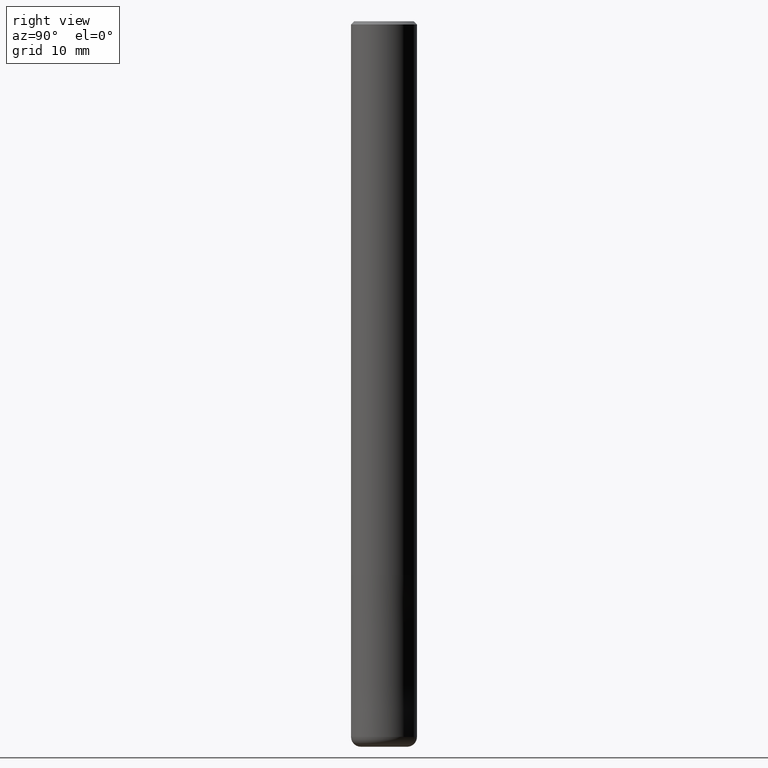
[diagram: clean part render]
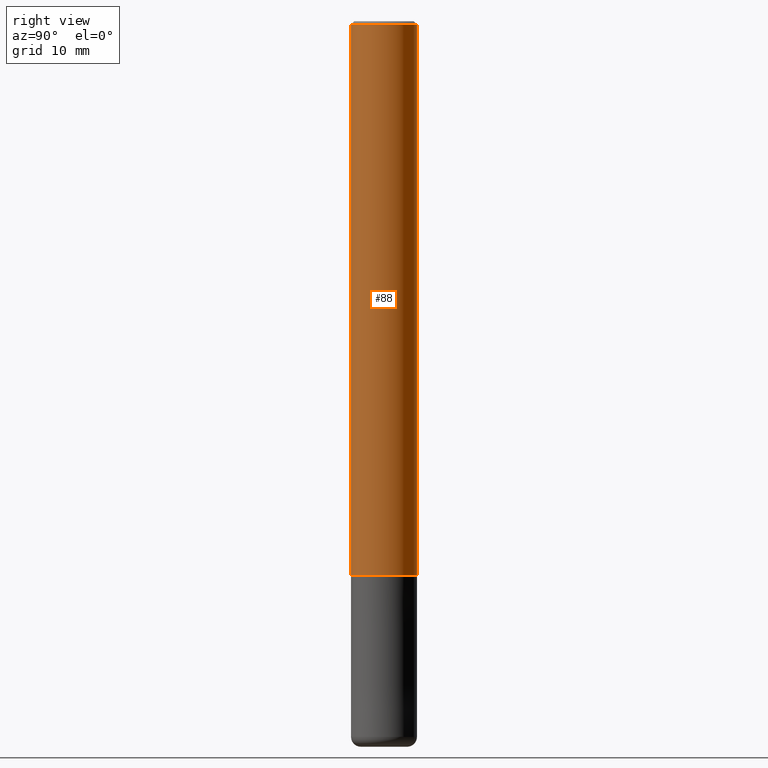
[diagram: same view with one face highlighted and labeled with its STEP entity id]
A machine part, right view. The second image highlights one B-rep face of the part: STEP entity #88.
In plain terms, the highlighted cylindrical surface (edge-blend (fillet) strip) has radius 5 mm, axis along (-0, -0, 1).
Its self-contained STEP definition (entity closure, byte-faithful):
#76=VERTEX_POINT('',#184);
#78=VERTEX_POINT('',#186);
#88=ADVANCED_FACE('',(#198),#199,.T.);
#106=VERTEX_POINT('',#221);
#110=EDGE_CURVE('',#106,#146,#225,.T.);
#126=EDGE_CURVE('',#78,#106,#241,.T.);
#136=EDGE_CURVE('',#76,#146,#251,.T.);
#146=VERTEX_POINT('',#262);
#152=EDGE_CURVE('',#76,#78,#268,.T.);
#184=CARTESIAN_POINT('',(0.0,5.0,-0.5));
#186=CARTESIAN_POINT('',(0.0,5.0,-84.0));
#198=FACE_OUTER_BOUND('',#305,.T.);
#199=CYLINDRICAL_SURFACE('',#306,5.0);
#221=CARTESIAN_POINT('',(6.12303176911189E-016,-5.0,-84.0));
#225=LINE('',#338,#339);
#241=CIRCLE('',#360,5.0);
#251=CIRCLE('',#376,5.0);
#262=CARTESIAN_POINT('',(6.12303176911189E-016,-5.0,-0.5));
#268=LINE('',#397,#398);
#305=EDGE_LOOP('',(#451,#452,#453,#454));
#306=AXIS2_PLACEMENT_3D('',#455,#456,#457);
#338=CARTESIAN_POINT('',(6.12303176911189E-016,-5.0,-42.25));
#339=VECTOR('',#496,1.0);
#360=AXIS2_PLACEMENT_3D('',#499,#500,#501);
#376=AXIS2_PLACEMENT_3D('',#512,#513,#514);
#397=CARTESIAN_POINT('',(-6.12303176911189E-016,5.0,-42.25));
#398=VECTOR('',#532,1.0);
#451=ORIENTED_EDGE('',*,*,#152,.F.);
#452=ORIENTED_EDGE('',*,*,#136,.T.);
#453=ORIENTED_EDGE('',*,*,#110,.F.);
#454=ORIENTED_EDGE('',*,*,#126,.F.);
#455=CARTESIAN_POINT('',(0.0,0.0,-42.25));
#456=DIRECTION('',(-0.0,-0.0,1.0));
#457=DIRECTION('',(0.0,1.0,0.0));
#496=DIRECTION('',(-0.0,-0.0,1.0));
#499=CARTESIAN_POINT('',(0.0,0.0,-84.0));
#500=DIRECTION('',(0.0,0.0,-1.0));
#501=DIRECTION('',(0.0,1.0,0.0));
#512=CARTESIAN_POINT('',(0.0,0.0,-0.5));
#513=DIRECTION('',(0.0,0.0,-1.0));
#514=DIRECTION('',(0.0,1.0,0.0));
#532=DIRECTION('',(0.0,0.0,-1.0));